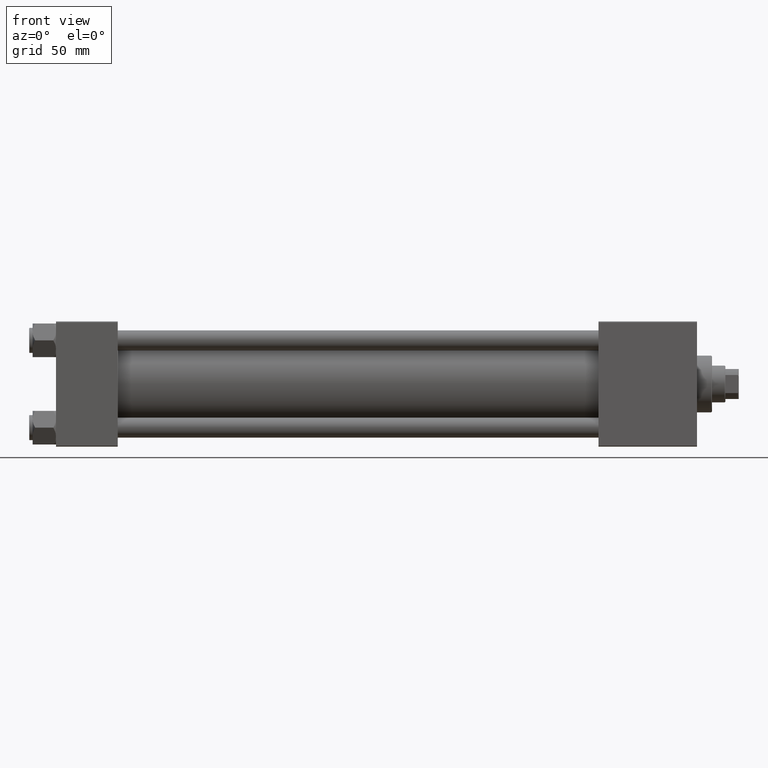
[diagram: clean part render]
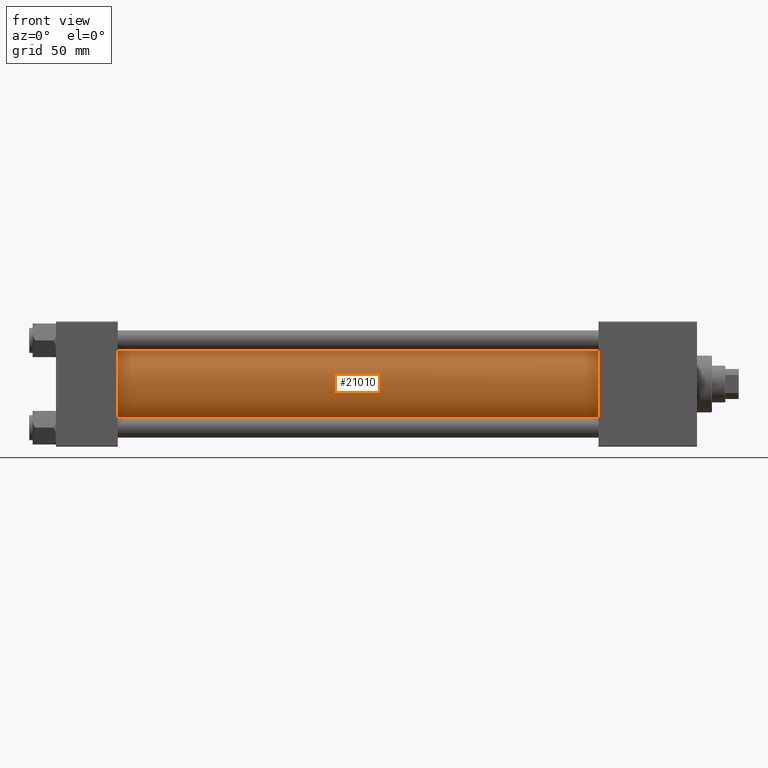
[diagram: same view with one face highlighted and labeled with its STEP entity id]
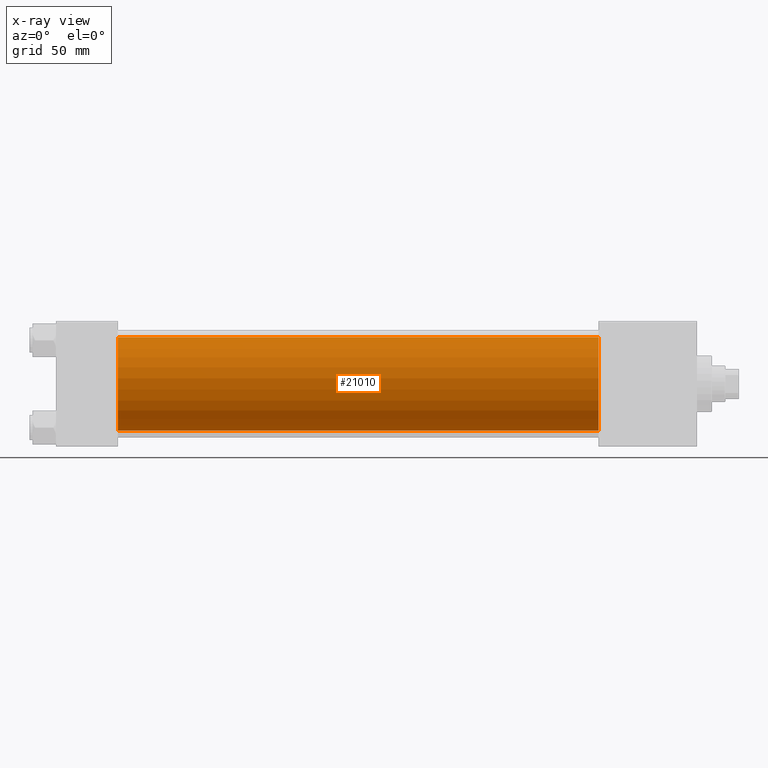
[diagram: x-ray of the same camera — body ghosted, the highlighted face saturated]
A machine part, front view. The second image highlights one B-rep face of the part: STEP entity #21010.
The next image is the same camera in x-ray: the body ghosted, the highlighted face saturated — about 0% of this face is hidden behind the body in this view.
In plain terms, the highlighted cylindrical surface (partial cylindrical patch) has radius 28 mm, axis along (-1, -0, -0).
Its self-contained STEP definition (entity closure, byte-faithful):
#3192 = DIRECTION ( 'NONE',  ( 0.000000000000000000, 0.000000000000000000, 1.000000000000000000 ) ) ;
#4086 = VECTOR ( 'NONE', #5466, 1000.000000000000000 ) ;
#5466 = DIRECTION ( 'NONE',  ( -1.000000000000000000, -0.000000000000000000, -0.000000000000000000 ) ) ;
#6994 = CARTESIAN_POINT ( 'NONE',  ( 36.99999999999997868, 8.269258236473784371E-16, -28.00000000000000000 ) ) ;
#7850 = AXIS2_PLACEMENT_3D ( 'NONE', #18423, #22225, #3192 ) ;
#7890 = VERTEX_POINT ( 'NONE', #19512 ) ;
#8178 = AXIS2_PLACEMENT_3D ( 'NONE', #45941, #26159, #38099 ) ;
#9458 = VERTEX_POINT ( 'NONE', #22217 ) ;
#13265 = VERTEX_POINT ( 'NONE', #6994 ) ;
#14371 = CYLINDRICAL_SURFACE ( 'NONE', #7850, 28.00000000000000000 ) ;
#15489 = CIRCLE ( 'NONE', #8178, 28.00000000000000000 ) ;
#15845 = EDGE_LOOP ( 'NONE', ( #19874, #25253, #40084, #47682 ) ) ;
#16950 = FACE_OUTER_BOUND ( 'NONE', #15845, .T. ) ;
#18423 = CARTESIAN_POINT ( 'NONE',  ( 324.9999999999999432, -2.602085213965210642E-15, 0.000000000000000000 ) ) ;
#19512 = CARTESIAN_POINT ( 'NONE',  ( 324.9999999999999432, -2.602085213965210642E-15, 28.00000000000000000 ) ) ;
#19874 = ORIENTED_EDGE ( 'NONE', *, *, #33164, .F. ) ;
#21010 = ADVANCED_FACE ( 'NONE', ( #16950 ), #14371, .T. ) ;
#22217 = CARTESIAN_POINT ( 'NONE',  ( 324.9999999999999432, 8.269258236473784371E-16, -28.00000000000000000 ) ) ;
#22225 = DIRECTION ( 'NONE',  ( -1.000000000000000000, -0.000000000000000000, -0.000000000000000000 ) ) ;
#24888 = CARTESIAN_POINT ( 'NONE',  ( 36.99999999999997868, -2.602085213965210642E-15, 28.00000000000000000 ) ) ;
#25253 = ORIENTED_EDGE ( 'NONE', *, *, #34393, .F. ) ;
#26159 = DIRECTION ( 'NONE',  ( 1.000000000000000000, 0.000000000000000000, 0.000000000000000000 ) ) ;
#32852 = CARTESIAN_POINT ( 'NONE',  ( 324.9999999999999432, -2.602085213965210642E-15, 28.00000000000000000 ) ) ;
#33164 = EDGE_CURVE ( 'NONE', #9458, #13265, #38453, .T. ) ;
#33211 = EDGE_CURVE ( 'NONE', #7890, #36116, #44275, .T. ) ;
#34393 = EDGE_CURVE ( 'NONE', #7890, #9458, #15489, .T. ) ;
#34648 = CARTESIAN_POINT ( 'NONE',  ( 324.9999999999999432, 8.269258236473784371E-16, -28.00000000000000000 ) ) ;
#34832 = CARTESIAN_POINT ( 'NONE',  ( 36.99999999999997868, -2.602085213965210642E-15, 0.000000000000000000 ) ) ;
#35330 = EDGE_CURVE ( 'NONE', #36116, #13265, #40632, .T. ) ;
#36116 = VERTEX_POINT ( 'NONE', #24888 ) ;
#36517 = VECTOR ( 'NONE', #38963, 1000.000000000000000 ) ;
#38099 = DIRECTION ( 'NONE',  ( 0.000000000000000000, 0.000000000000000000, -1.000000000000000000 ) ) ;
#38453 = LINE ( 'NONE', #34648, #36517 ) ;
#38636 = DIRECTION ( 'NONE',  ( 1.000000000000000000, -0.000000000000000000, 0.000000000000000000 ) ) ;
#38963 = DIRECTION ( 'NONE',  ( -1.000000000000000000, -0.000000000000000000, -0.000000000000000000 ) ) ;
#40084 = ORIENTED_EDGE ( 'NONE', *, *, #33211, .T. ) ;
#40632 = CIRCLE ( 'NONE', #41441, 28.00000000000000000 ) ;
#41441 = AXIS2_PLACEMENT_3D ( 'NONE', #34832, #38636, #50040 ) ;
#44275 = LINE ( 'NONE', #32852, #4086 ) ;
#45941 = CARTESIAN_POINT ( 'NONE',  ( 324.9999999999999432, -2.602085213965210642E-15, 0.000000000000000000 ) ) ;
#47682 = ORIENTED_EDGE ( 'NONE', *, *, #35330, .T. ) ;
#50040 = DIRECTION ( 'NONE',  ( 0.000000000000000000, 0.000000000000000000, 1.000000000000000000 ) ) ;